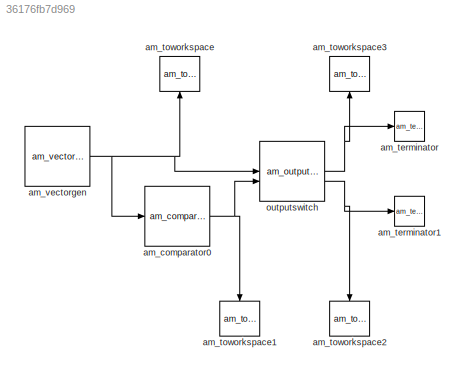
MODEL slx_36176fb7d969
KIND model
CONFIG AbsTol = auto
CONFIG EnableMultiTasking = off
CONFIG FixedStep = auto
CONFIG MaxStep = auto
CONFIG MinStep = auto
CONFIG RelTol = 1e-3
CONFIG SampleTimeConstraint = Unconstrained
CONFIG SolverName = VariableStepAuto
CONFIG StartTime = 0.0
CONFIG StopTime = 10.0
BLOCK [Reference] am_comparator0  REF=PaperLib/am_comparator0
  SourceBlock = PaperLib/am_comparator0
  SourceType = Comparator
BLOCK [Reference] am_terminator  REF=StdLib/am_terminator
  SourceBlock = StdLib/am_terminator
  SourceProductName = Logistics
  SourceType = Terminator
BLOCK [Reference] am_terminator1  REF=StdLib/am_terminator
  SourceBlock = StdLib/am_terminator
  SourceProductName = Logistics
  SourceType = Terminator
BLOCK [Reference] am_toworkspace  REF=StdLib/am_toworkspace
  NameLocation = right
  SourceBlock = StdLib/am_toworkspace
  SourceProductName = Sinks
  SourceType = ToWorkspace
BLOCK [Reference] am_toworkspace1  REF=StdLib/am_toworkspace
  NameLocation = left
  SourceBlock = StdLib/am_toworkspace
  SourceProductName = Sinks
  SourceType = ToWorkspace
BLOCK [Reference] am_toworkspace2  REF=StdLib/am_toworkspace
  NameLocation = left
  SourceBlock = StdLib/am_toworkspace
  SourceProductName = Sinks
  SourceType = ToWorkspace
BLOCK [Reference] am_toworkspace3  REF=StdLib/am_toworkspace
  NameLocation = right
  SourceBlock = StdLib/am_toworkspace
  SourceProductName = Sinks
  SourceType = ToWorkspace
BLOCK [Reference] am_vectorgen  REF=StdLib/am_vectorgen
  SourceBlock = StdLib/am_vectorgen
  SourceProductName = Sources
  SourceType = Vectorgen
BLOCK [Reference] outputswitch  REF=PaperLib/am_outputswitch0
  SourceBlock = PaperLib/am_outputswitch0
  SourceType = Outputswitch
NET am_comparator0:1 -> am_toworkspace1:1, outputswitch:2
NET am_vectorgen:1 -> am_comparator0:1, am_toworkspace:1, outputswitch:1
NET outputswitch:1 -> am_terminator:1, am_toworkspace3:1
NET outputswitch:2 -> am_terminator1:1, am_toworkspace2:1
note: NET lines group one-source signal fan-out (src -> all destinations, sorted); 1:1 wires keep LINE
